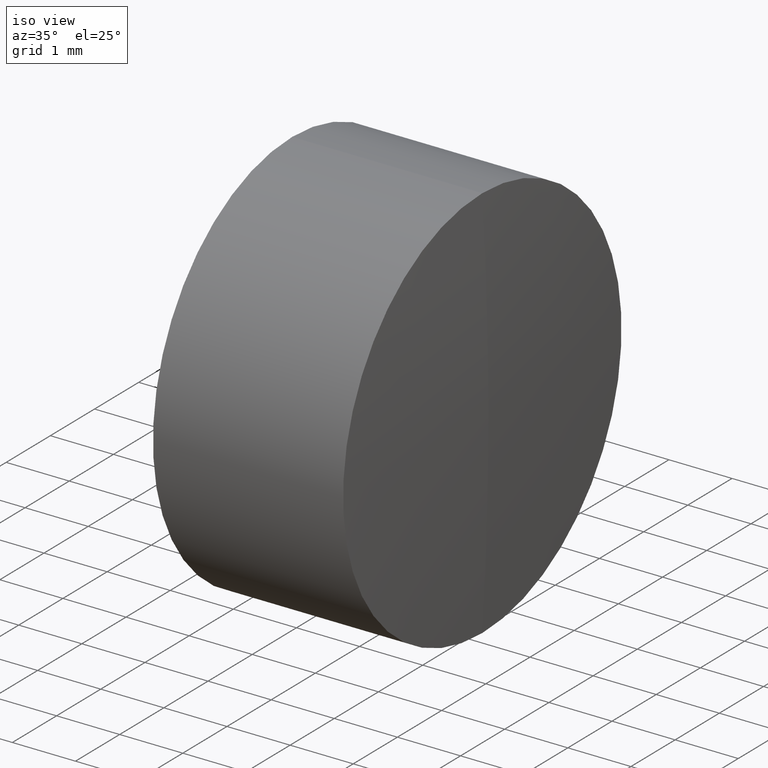
[diagram: clean part render]
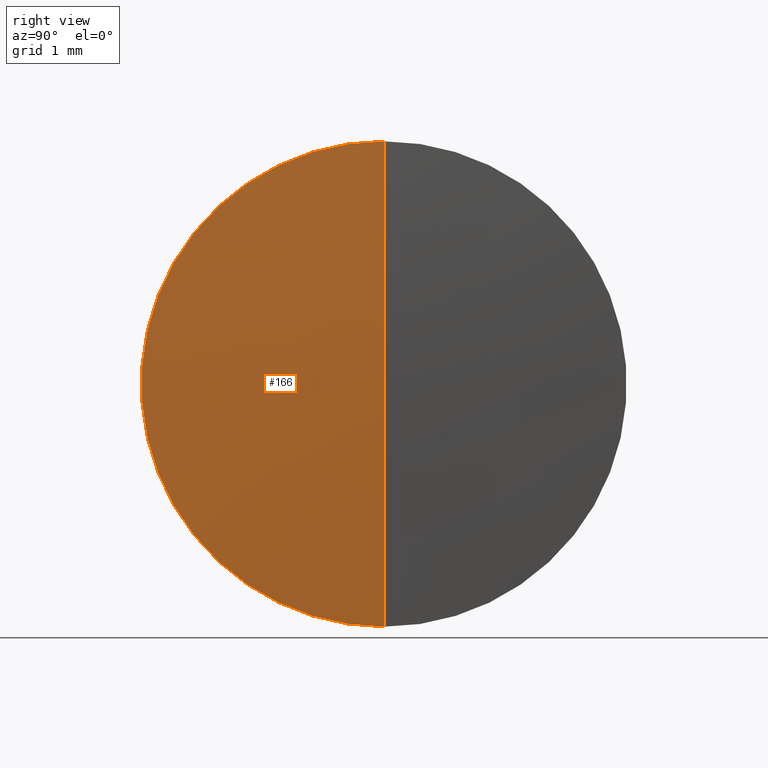
[diagram: tour spotlight — one face highlighted and labeled with its STEP entity id]
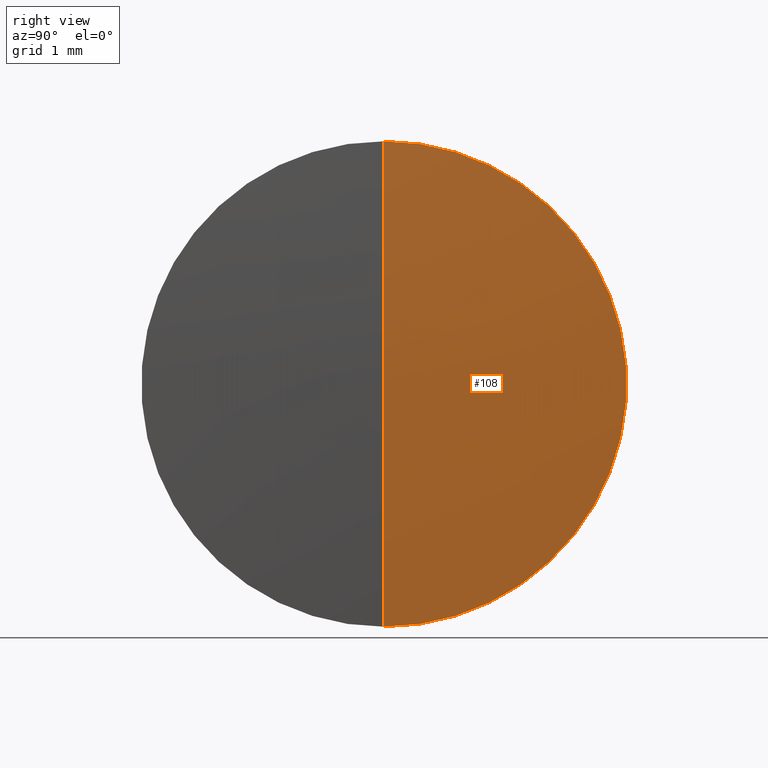
[diagram: tour spotlight — one face highlighted and labeled with its STEP entity id]
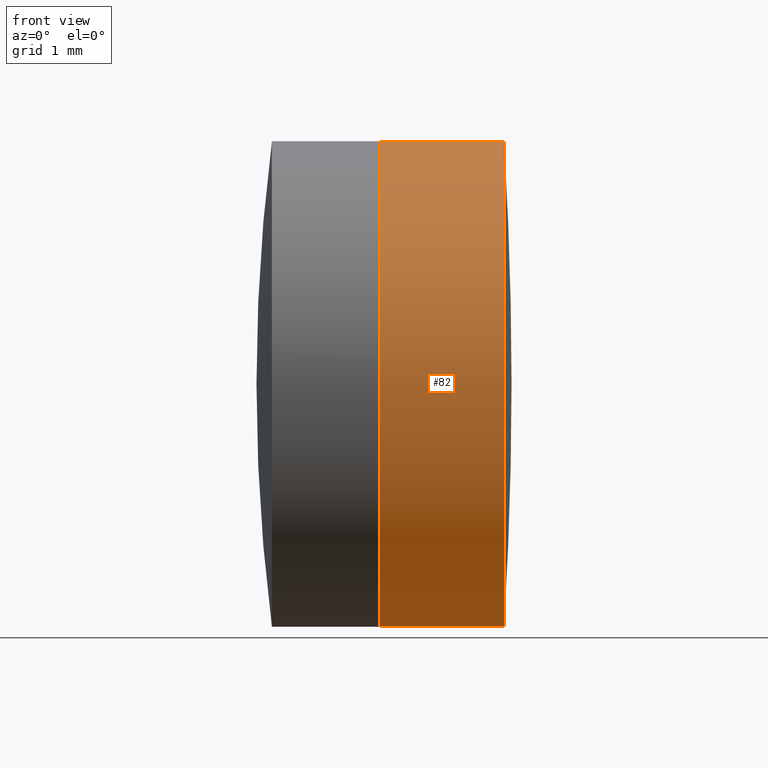
[diagram: tour spotlight — one face highlighted and labeled with its STEP entity id]
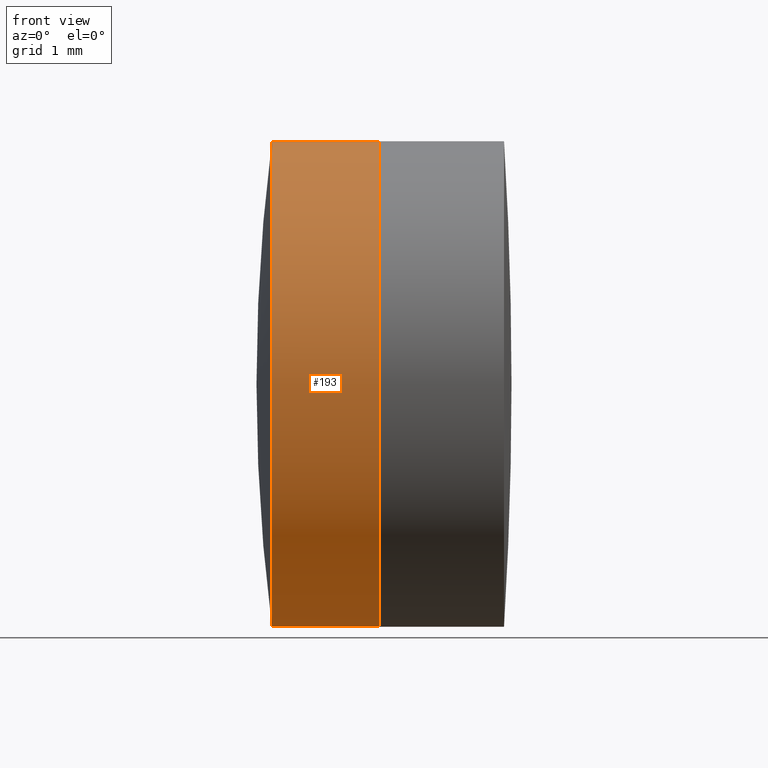
[diagram: tour spotlight — one face highlighted and labeled with its STEP entity id]
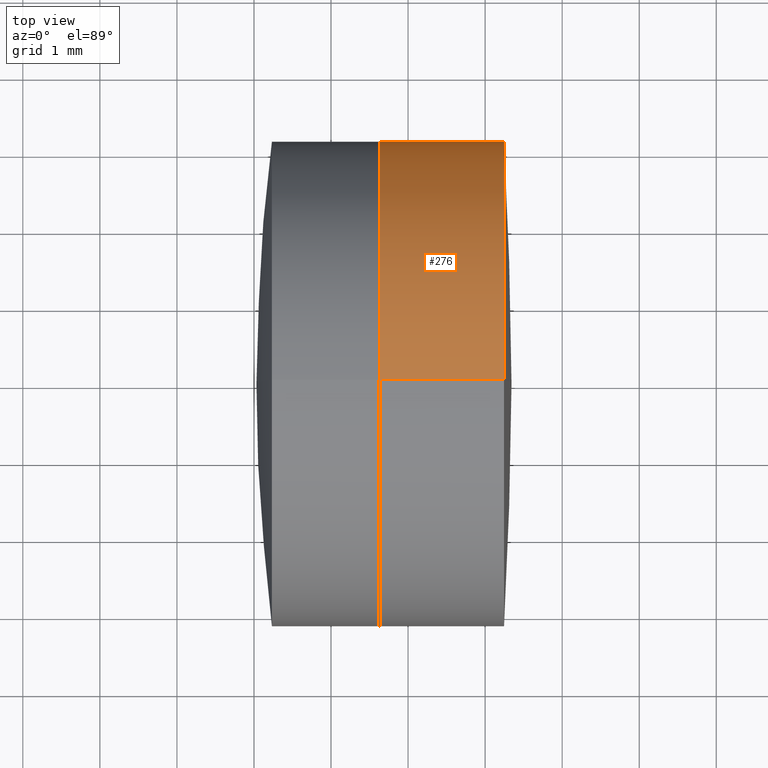
[diagram: tour spotlight — one face highlighted and labeled with its STEP entity id]
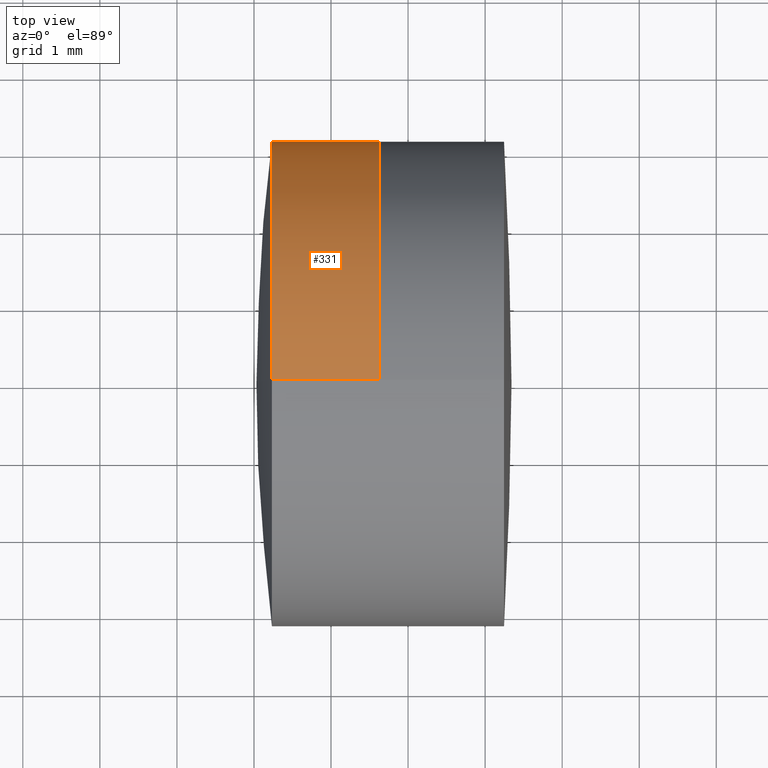
[diagram: tour spotlight — one face highlighted and labeled with its STEP entity id]
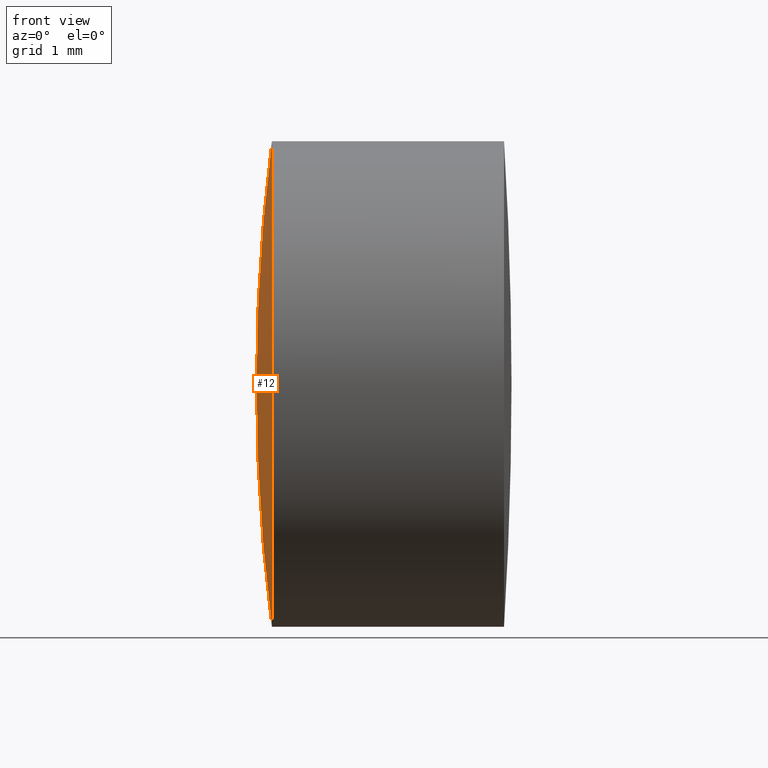
[diagram: tour spotlight — one face highlighted and labeled with its STEP entity id]
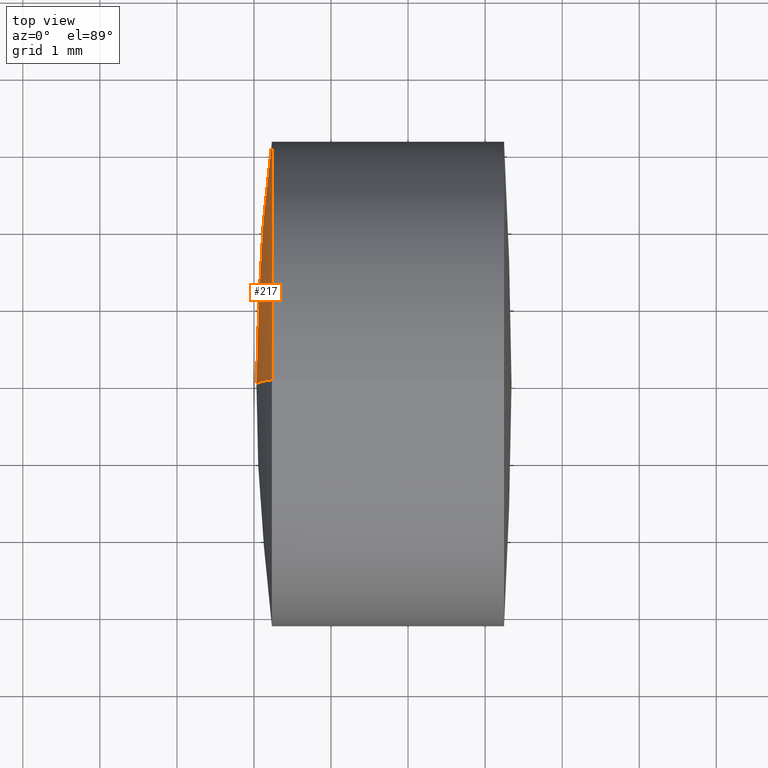
[diagram: tour spotlight — one face highlighted and labeled with its STEP entity id]
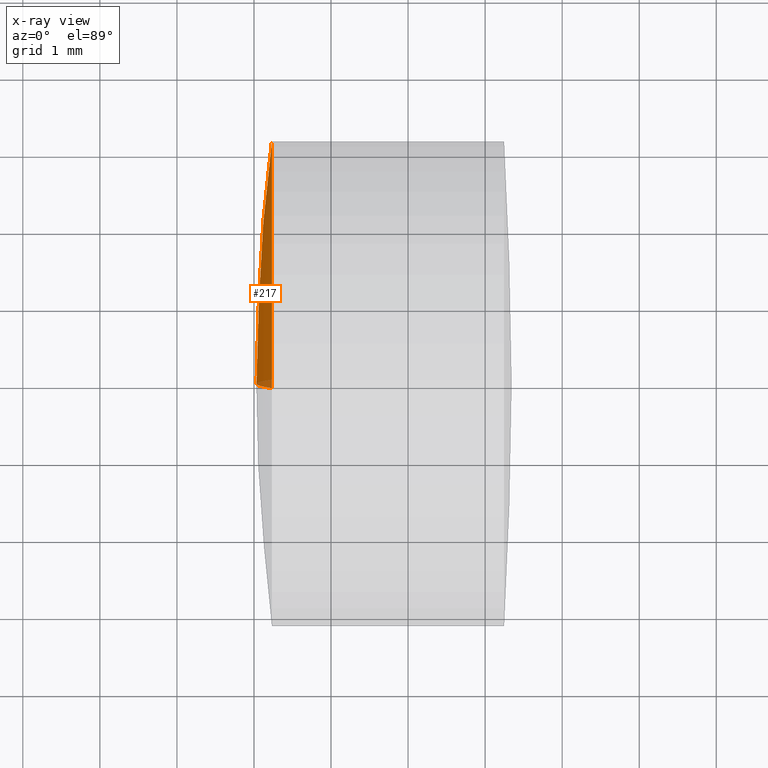
[diagram: x-ray of the same camera — body ghosted, this tour face saturated]
A machine part: a face-by-face anatomy tour. The part has 12 B-rep faces; the first image is the clean iso view, then the 8 largest visible faces are spotlighted one at a time (largest first), each with its STEP entity span.

Face 1 — right view, entity #166. In plain terms, the highlighted spherical surface has radius 51.066 mm.
Definition (entity closure, byte-faithful):
#8 = DIRECTION ( 'NONE',  ( 0.0000000000000000000, 0.0000000000000000000, 1.000000000000000000 ) ) ;
#16 = VERTEX_POINT ( 'NONE', #324 ) ;
#22 = ORIENTED_EDGE ( 'NONE', *, *, #316, .F. ) ;
#29 = CARTESIAN_POINT ( 'NONE',  ( 12.24520291692307500, 0.0000000000000000000, 0.0000000000000000000 ) ) ;
#53 = FACE_OUTER_BOUND ( 'NONE', #177, .T. ) ;
#68 = AXIS2_PLACEMENT_3D ( 'NONE', #29, #161, #8 ) ;
#69 = AXIS2_PLACEMENT_3D ( 'NONE', #268, #73, #234 ) ;
#73 = DIRECTION ( 'NONE',  ( 0.0000000000000000000, -1.000000000000000000, 0.0000000000000000000 ) ) ;
#75 = CARTESIAN_POINT ( 'NONE',  ( 12.24520291692307500, 3.857637417314163700E-016, -3.149999999999997700 ) ) ;
#83 = VERTEX_POINT ( 'NONE', #75 ) ;
#94 = EDGE_CURVE ( 'NONE', #290, #83, #121, .T. ) ;
#100 = CIRCLE ( 'NONE', #69, 51.06600000000000300 ) ;
#115 = EDGE_CURVE ( 'NONE', #290, #16, #100, .T. ) ;
#120 = AXIS2_PLACEMENT_3D ( 'NONE', #156, #270, #183 ) ;
#121 = CIRCLE ( 'NONE', #120, 51.06600000000000300 ) ;
#146 = AXIS2_PLACEMENT_3D ( 'NONE', #205, #320, #232 ) ;
#148 = SPHERICAL_SURFACE ( 'NONE', #146, 51.06600000000000300 ) ;
#156 = CARTESIAN_POINT ( 'NONE',  ( -38.72355080533307600, 0.0000000000000000000, 0.0000000000000000000 ) ) ;
#157 = ORIENTED_EDGE ( 'NONE', *, *, #115, .T. ) ;
#161 = DIRECTION ( 'NONE',  ( -1.000000000000000000, -0.0000000000000000000, -0.0000000000000000000 ) ) ;
#166 = ADVANCED_FACE ( 'NONE', ( #53 ), #148, .T. ) ;
#177 = EDGE_LOOP ( 'NONE', ( #269, #157, #22 ) ) ;
#183 = DIRECTION ( 'NONE',  ( 0.0000000000000000000, -1.224646799147353000E-016, 1.000000000000000000 ) ) ;
#205 = CARTESIAN_POINT ( 'NONE',  ( -38.72355080533307600, 0.0000000000000000000, 0.0000000000000000000 ) ) ;
#232 = DIRECTION ( 'NONE',  ( 0.0000000000000000000, 0.0000000000000000000, 1.000000000000000000 ) ) ;
#234 = DIRECTION ( 'NONE',  ( 0.0000000000000000000, 0.0000000000000000000, -1.000000000000000000 ) ) ;
#268 = CARTESIAN_POINT ( 'NONE',  ( -38.72355080533307600, 0.0000000000000000000, 0.0000000000000000000 ) ) ;
#269 = ORIENTED_EDGE ( 'NONE', *, *, #94, .F. ) ;
#270 = DIRECTION ( 'NONE',  ( -0.0000000000000000000, 1.000000000000000000, 1.224646799147353200E-016 ) ) ;
#290 = VERTEX_POINT ( 'NONE', #335 ) ;
#295 = CIRCLE ( 'NONE', #68, 3.149999999999997700 ) ;
#316 = EDGE_CURVE ( 'NONE', #83, #16, #295, .T. ) ;
#320 = DIRECTION ( 'NONE',  ( 0.0000000000000000000, 1.000000000000000000, 0.0000000000000000000 ) ) ;
#324 = CARTESIAN_POINT ( 'NONE',  ( 12.24520291692307500, 0.0000000000000000000, 3.149999999999997700 ) ) ;
#335 = CARTESIAN_POINT ( 'NONE',  ( 12.34244919466692600, 0.0000000000000000000, 3.126890672262936700E-015 ) ) ;

Face 2 — right view, entity #108. In plain terms, the highlighted spherical surface has radius 51.066 mm.
Definition (entity closure, byte-faithful):
#16 = VERTEX_POINT ( 'NONE', #324 ) ;
#36 = SPHERICAL_SURFACE ( 'NONE', #164, 51.06600000000000300 ) ;
#47 = DIRECTION ( 'NONE',  ( 0.0000000000000000000, 0.0000000000000000000, 1.000000000000000000 ) ) ;
#69 = AXIS2_PLACEMENT_3D ( 'NONE', #268, #73, #234 ) ;
#70 = DIRECTION ( 'NONE',  ( -1.000000000000000000, -0.0000000000000000000, -0.0000000000000000000 ) ) ;
#72 = ORIENTED_EDGE ( 'NONE', *, *, #115, .F. ) ;
#73 = DIRECTION ( 'NONE',  ( 0.0000000000000000000, -1.000000000000000000, 0.0000000000000000000 ) ) ;
#75 = CARTESIAN_POINT ( 'NONE',  ( 12.24520291692307500, 3.857637417314163700E-016, -3.149999999999997700 ) ) ;
#83 = VERTEX_POINT ( 'NONE', #75 ) ;
#91 = EDGE_LOOP ( 'NONE', ( #72, #317, #245 ) ) ;
#94 = EDGE_CURVE ( 'NONE', #290, #83, #121, .T. ) ;
#100 = CIRCLE ( 'NONE', #69, 51.06600000000000300 ) ;
#108 = ADVANCED_FACE ( 'NONE', ( #243 ), #36, .T. ) ;
#115 = EDGE_CURVE ( 'NONE', #290, #16, #100, .T. ) ;
#120 = AXIS2_PLACEMENT_3D ( 'NONE', #156, #270, #183 ) ;
#121 = CIRCLE ( 'NONE', #120, 51.06600000000000300 ) ;
#125 = DIRECTION ( 'NONE',  ( 0.0000000000000000000, 0.0000000000000000000, 1.000000000000000000 ) ) ;
#147 = EDGE_CURVE ( 'NONE', #16, #83, #175, .T. ) ;
#156 = CARTESIAN_POINT ( 'NONE',  ( -38.72355080533307600, 0.0000000000000000000, 0.0000000000000000000 ) ) ;
#160 = DIRECTION ( 'NONE',  ( 0.0000000000000000000, 1.000000000000000000, 0.0000000000000000000 ) ) ;
#164 = AXIS2_PLACEMENT_3D ( 'NONE', #209, #160, #125 ) ;
#175 = CIRCLE ( 'NONE', #275, 3.149999999999997700 ) ;
#183 = DIRECTION ( 'NONE',  ( 0.0000000000000000000, -1.224646799147353000E-016, 1.000000000000000000 ) ) ;
#209 = CARTESIAN_POINT ( 'NONE',  ( -38.72355080533307600, 0.0000000000000000000, 0.0000000000000000000 ) ) ;
#234 = DIRECTION ( 'NONE',  ( 0.0000000000000000000, 0.0000000000000000000, -1.000000000000000000 ) ) ;
#243 = FACE_OUTER_BOUND ( 'NONE', #91, .T. ) ;
#245 = ORIENTED_EDGE ( 'NONE', *, *, #147, .F. ) ;
#266 = CARTESIAN_POINT ( 'NONE',  ( 12.24520291692307500, 0.0000000000000000000, 0.0000000000000000000 ) ) ;
#268 = CARTESIAN_POINT ( 'NONE',  ( -38.72355080533307600, 0.0000000000000000000, 0.0000000000000000000 ) ) ;
#270 = DIRECTION ( 'NONE',  ( -0.0000000000000000000, 1.000000000000000000, 1.224646799147353200E-016 ) ) ;
#275 = AXIS2_PLACEMENT_3D ( 'NONE', #266, #70, #47 ) ;
#290 = VERTEX_POINT ( 'NONE', #335 ) ;
#317 = ORIENTED_EDGE ( 'NONE', *, *, #94, .T. ) ;
#324 = CARTESIAN_POINT ( 'NONE',  ( 12.24520291692307500, 0.0000000000000000000, 3.149999999999997700 ) ) ;
#335 = CARTESIAN_POINT ( 'NONE',  ( 12.34244919466692600, 0.0000000000000000000, 3.126890672262936700E-015 ) ) ;

Face 3 — front view, entity #82. In plain terms, the highlighted cylindrical surface (partial cylindrical patch) has radius 3.15 mm, axis along (-1, -0, -0).
Definition (entity closure, byte-faithful):
#8 = DIRECTION ( 'NONE',  ( 0.0000000000000000000, 0.0000000000000000000, 1.000000000000000000 ) ) ;
#16 = VERTEX_POINT ( 'NONE', #324 ) ;
#29 = CARTESIAN_POINT ( 'NONE',  ( 12.24520291692307500, 0.0000000000000000000, 0.0000000000000000000 ) ) ;
#30 = ORIENTED_EDGE ( 'NONE', *, *, #203, .T. ) ;
#31 = ORIENTED_EDGE ( 'NONE', *, *, #170, .F. ) ;
#48 = CARTESIAN_POINT ( 'NONE',  ( 10.62920690864783800, 0.0000000000000000000, 3.150000000000012300 ) ) ;
#67 = LINE ( 'NONE', #87, #220 ) ;
#68 = AXIS2_PLACEMENT_3D ( 'NONE', #29, #161, #8 ) ;
#74 = DIRECTION ( 'NONE',  ( -1.000000000000000000, -0.0000000000000000000, -0.0000000000000000000 ) ) ;
#75 = CARTESIAN_POINT ( 'NONE',  ( 12.24520291692307500, 3.857637417314163700E-016, -3.149999999999997700 ) ) ;
#80 = DIRECTION ( 'NONE',  ( 0.0000000000000000000, 0.0000000000000000000, 1.000000000000000000 ) ) ;
#82 = ADVANCED_FACE ( 'NONE', ( #204 ), #314, .T. ) ;
#83 = VERTEX_POINT ( 'NONE', #75 ) ;
#87 = CARTESIAN_POINT ( 'NONE',  ( -0.5519199926577972300, 0.0000000000000000000, 3.150000000000002600 ) ) ;
#92 = CIRCLE ( 'NONE', #299, 3.150000000000007000 ) ;
#105 = ORIENTED_EDGE ( 'NONE', *, *, #316, .T. ) ;
#106 = CARTESIAN_POINT ( 'NONE',  ( 10.62920690864784000, 0.0000000000000000000, 0.0000000000000000000 ) ) ;
#136 = VECTOR ( 'NONE', #74, 1000.000000000000000 ) ;
#141 = AXIS2_PLACEMENT_3D ( 'NONE', #297, #271, #185 ) ;
#142 = VERTEX_POINT ( 'NONE', #48 ) ;
#149 = VERTEX_POINT ( 'NONE', #294 ) ;
#161 = DIRECTION ( 'NONE',  ( -1.000000000000000000, -0.0000000000000000000, -0.0000000000000000000 ) ) ;
#170 = EDGE_CURVE ( 'NONE', #83, #149, #174, .T. ) ;
#174 = LINE ( 'NONE', #321, #136 ) ;
#185 = DIRECTION ( 'NONE',  ( 0.0000000000000000000, 0.0000000000000000000, 1.000000000000000000 ) ) ;
#202 = EDGE_LOOP ( 'NONE', ( #31, #105, #30, #292 ) ) ;
#203 = EDGE_CURVE ( 'NONE', #16, #142, #67, .T. ) ;
#204 = FACE_OUTER_BOUND ( 'NONE', #202, .T. ) ;
#220 = VECTOR ( 'NONE', #284, 1000.000000000000000 ) ;
#271 = DIRECTION ( 'NONE',  ( -1.000000000000000000, -0.0000000000000000000, -0.0000000000000000000 ) ) ;
#284 = DIRECTION ( 'NONE',  ( -1.000000000000000000, -0.0000000000000000000, -0.0000000000000000000 ) ) ;
#285 = EDGE_CURVE ( 'NONE', #149, #142, #92, .T. ) ;
#292 = ORIENTED_EDGE ( 'NONE', *, *, #285, .F. ) ;
#294 = CARTESIAN_POINT ( 'NONE',  ( 10.62920690864783800, 3.857637417314177500E-016, -3.150000000000011900 ) ) ;
#295 = CIRCLE ( 'NONE', #68, 3.149999999999997700 ) ;
#297 = CARTESIAN_POINT ( 'NONE',  ( -0.5519199926577972300, 0.0000000000000000000, 0.0000000000000000000 ) ) ;
#299 = AXIS2_PLACEMENT_3D ( 'NONE', #106, #304, #80 ) ;
#304 = DIRECTION ( 'NONE',  ( -1.000000000000000000, -0.0000000000000000000, -0.0000000000000000000 ) ) ;
#314 = CYLINDRICAL_SURFACE ( 'NONE', #141, 3.150000000000002600 ) ;
#316 = EDGE_CURVE ( 'NONE', #83, #16, #295, .T. ) ;
#321 = CARTESIAN_POINT ( 'NONE',  ( -0.5519199926577972300, 3.857637417314166100E-016, -3.150000000000002600 ) ) ;
#324 = CARTESIAN_POINT ( 'NONE',  ( 12.24520291692307500, 0.0000000000000000000, 3.149999999999997700 ) ) ;

Face 4 — front view, entity #193. In plain terms, the highlighted cylindrical surface (partial cylindrical patch) has radius 3.15 mm, axis along (-1, -0, -0).
Definition (entity closure, byte-faithful):
#6 = CARTESIAN_POINT ( 'NONE',  ( 9.232637584155448000, -3.857637417314168100E-016, 3.150000000000004400 ) ) ;
#10 = EDGE_CURVE ( 'NONE', #230, #227, #37, .T. ) ;
#11 = EDGE_CURVE ( 'NONE', #227, #38, #315, .T. ) ;
#20 = AXIS2_PLACEMENT_3D ( 'NONE', #55, #212, #28 ) ;
#23 = CARTESIAN_POINT ( 'NONE',  ( 10.62920690864784300, 0.0000000000000000000, 3.149999999999999900 ) ) ;
#25 = DIRECTION ( 'NONE',  ( 0.0000000000000000000, 0.0000000000000000000, 1.000000000000000000 ) ) ;
#28 = DIRECTION ( 'NONE',  ( 0.0000000000000000000, 0.0000000000000000000, 1.000000000000000000 ) ) ;
#37 = LINE ( 'NONE', #274, #257 ) ;
#38 = VERTEX_POINT ( 'NONE', #6 ) ;
#55 = CARTESIAN_POINT ( 'NONE',  ( 9.232637584155448000, 0.0000000000000000000, 0.0000000000000000000 ) ) ;
#79 = DIRECTION ( 'NONE',  ( -1.000000000000000000, -0.0000000000000000000, -0.0000000000000000000 ) ) ;
#86 = CYLINDRICAL_SURFACE ( 'NONE', #201, 3.149999999999999900 ) ;
#97 = CARTESIAN_POINT ( 'NONE',  ( 10.62920690864784300, 3.857637417314162700E-016, -3.149999999999999900 ) ) ;
#99 = CARTESIAN_POINT ( 'NONE',  ( -0.8160621761658039000, 0.0000000000000000000, 3.149999999999999900 ) ) ;
#101 = DIRECTION ( 'NONE',  ( -1.000000000000000000, -0.0000000000000000000, -0.0000000000000000000 ) ) ;
#126 = DIRECTION ( 'NONE',  ( -1.000000000000000000, -0.0000000000000000000, -0.0000000000000000000 ) ) ;
#130 = EDGE_CURVE ( 'NONE', #230, #145, #256, .T. ) ;
#133 = ORIENTED_EDGE ( 'NONE', *, *, #130, .T. ) ;
#143 = LINE ( 'NONE', #99, #158 ) ;
#145 = VERTEX_POINT ( 'NONE', #23 ) ;
#151 = DIRECTION ( 'NONE',  ( 0.0000000000000000000, 0.0000000000000000000, 1.000000000000000000 ) ) ;
#158 = VECTOR ( 'NONE', #79, 1000.000000000000000 ) ;
#171 = EDGE_LOOP ( 'NONE', ( #310, #133, #337, #229 ) ) ;
#180 = CARTESIAN_POINT ( 'NONE',  ( 10.62920690864784300, 0.0000000000000000000, 0.0000000000000000000 ) ) ;
#193 = ADVANCED_FACE ( 'NONE', ( #272 ), #86, .T. ) ;
#201 = AXIS2_PLACEMENT_3D ( 'NONE', #296, #126, #25 ) ;
#212 = DIRECTION ( 'NONE',  ( -1.000000000000000000, -0.0000000000000000000, -0.0000000000000000000 ) ) ;
#227 = VERTEX_POINT ( 'NONE', #255 ) ;
#229 = ORIENTED_EDGE ( 'NONE', *, *, #11, .F. ) ;
#230 = VERTEX_POINT ( 'NONE', #97 ) ;
#255 = CARTESIAN_POINT ( 'NONE',  ( 9.232637584155448000, 0.0000000000000000000, -3.150000000000004400 ) ) ;
#256 = CIRCLE ( 'NONE', #261, 3.149999999999999900 ) ;
#257 = VECTOR ( 'NONE', #101, 1000.000000000000000 ) ;
#261 = AXIS2_PLACEMENT_3D ( 'NONE', #180, #345, #151 ) ;
#272 = FACE_OUTER_BOUND ( 'NONE', #171, .T. ) ;
#274 = CARTESIAN_POINT ( 'NONE',  ( -0.8160621761658039000, 3.857637417314162700E-016, -3.149999999999999900 ) ) ;
#296 = CARTESIAN_POINT ( 'NONE',  ( -0.8160621761658039000, 0.0000000000000000000, 0.0000000000000000000 ) ) ;
#310 = ORIENTED_EDGE ( 'NONE', *, *, #10, .F. ) ;
#315 = CIRCLE ( 'NONE', #20, 3.149999999999999900 ) ;
#337 = ORIENTED_EDGE ( 'NONE', *, *, #340, .T. ) ;
#340 = EDGE_CURVE ( 'NONE', #145, #38, #143, .T. ) ;
#345 = DIRECTION ( 'NONE',  ( -1.000000000000000000, -0.0000000000000000000, -0.0000000000000000000 ) ) ;

Face 5 — top view, entity #276. In plain terms, the highlighted cylindrical surface (partial cylindrical patch) has radius 3.15 mm, axis along (-1, -0, -0).
Definition (entity closure, byte-faithful):
#2 = CIRCLE ( 'NONE', #291, 3.150000000000007000 ) ;
#15 = ORIENTED_EDGE ( 'NONE', *, *, #189, .F. ) ;
#16 = VERTEX_POINT ( 'NONE', #324 ) ;
#41 = CYLINDRICAL_SURFACE ( 'NONE', #313, 3.150000000000002600 ) ;
#47 = DIRECTION ( 'NONE',  ( 0.0000000000000000000, 0.0000000000000000000, 1.000000000000000000 ) ) ;
#48 = CARTESIAN_POINT ( 'NONE',  ( 10.62920690864783800, 0.0000000000000000000, 3.150000000000012300 ) ) ;
#50 = DIRECTION ( 'NONE',  ( -1.000000000000000000, -0.0000000000000000000, -0.0000000000000000000 ) ) ;
#67 = LINE ( 'NONE', #87, #220 ) ;
#70 = DIRECTION ( 'NONE',  ( -1.000000000000000000, -0.0000000000000000000, -0.0000000000000000000 ) ) ;
#74 = DIRECTION ( 'NONE',  ( -1.000000000000000000, -0.0000000000000000000, -0.0000000000000000000 ) ) ;
#75 = CARTESIAN_POINT ( 'NONE',  ( 12.24520291692307500, 3.857637417314163700E-016, -3.149999999999997700 ) ) ;
#83 = VERTEX_POINT ( 'NONE', #75 ) ;
#87 = CARTESIAN_POINT ( 'NONE',  ( -0.5519199926577972300, 0.0000000000000000000, 3.150000000000002600 ) ) ;
#116 = DIRECTION ( 'NONE',  ( 0.0000000000000000000, 0.0000000000000000000, 1.000000000000000000 ) ) ;
#136 = VECTOR ( 'NONE', #74, 1000.000000000000000 ) ;
#142 = VERTEX_POINT ( 'NONE', #48 ) ;
#147 = EDGE_CURVE ( 'NONE', #16, #83, #175, .T. ) ;
#149 = VERTEX_POINT ( 'NONE', #294 ) ;
#150 = ORIENTED_EDGE ( 'NONE', *, *, #147, .T. ) ;
#153 = DIRECTION ( 'NONE',  ( -1.000000000000000000, -0.0000000000000000000, -0.0000000000000000000 ) ) ;
#155 = CARTESIAN_POINT ( 'NONE',  ( 10.62920690864784000, 0.0000000000000000000, 0.0000000000000000000 ) ) ;
#165 = ORIENTED_EDGE ( 'NONE', *, *, #203, .F. ) ;
#170 = EDGE_CURVE ( 'NONE', #83, #149, #174, .T. ) ;
#174 = LINE ( 'NONE', #321, #136 ) ;
#175 = CIRCLE ( 'NONE', #275, 3.149999999999997700 ) ;
#189 = EDGE_CURVE ( 'NONE', #142, #149, #2, .T. ) ;
#195 = ORIENTED_EDGE ( 'NONE', *, *, #170, .T. ) ;
#203 = EDGE_CURVE ( 'NONE', #16, #142, #67, .T. ) ;
#220 = VECTOR ( 'NONE', #284, 1000.000000000000000 ) ;
#236 = DIRECTION ( 'NONE',  ( 0.0000000000000000000, 0.0000000000000000000, 1.000000000000000000 ) ) ;
#264 = EDGE_LOOP ( 'NONE', ( #150, #195, #15, #165 ) ) ;
#266 = CARTESIAN_POINT ( 'NONE',  ( 12.24520291692307500, 0.0000000000000000000, 0.0000000000000000000 ) ) ;
#275 = AXIS2_PLACEMENT_3D ( 'NONE', #266, #70, #47 ) ;
#276 = ADVANCED_FACE ( 'NONE', ( #319 ), #41, .T. ) ;
#284 = DIRECTION ( 'NONE',  ( -1.000000000000000000, -0.0000000000000000000, -0.0000000000000000000 ) ) ;
#291 = AXIS2_PLACEMENT_3D ( 'NONE', #155, #50, #116 ) ;
#293 = CARTESIAN_POINT ( 'NONE',  ( -0.5519199926577972300, 0.0000000000000000000, 0.0000000000000000000 ) ) ;
#294 = CARTESIAN_POINT ( 'NONE',  ( 10.62920690864783800, 3.857637417314177500E-016, -3.150000000000011900 ) ) ;
#313 = AXIS2_PLACEMENT_3D ( 'NONE', #293, #153, #236 ) ;
#319 = FACE_OUTER_BOUND ( 'NONE', #264, .T. ) ;
#321 = CARTESIAN_POINT ( 'NONE',  ( -0.5519199926577972300, 3.857637417314166100E-016, -3.150000000000002600 ) ) ;
#324 = CARTESIAN_POINT ( 'NONE',  ( 12.24520291692307500, 0.0000000000000000000, 3.149999999999997700 ) ) ;

Face 6 — top view, entity #331. In plain terms, the highlighted cylindrical surface (partial cylindrical patch) has radius 3.15 mm, axis along (-1, -0, -0).
Definition (entity closure, byte-faithful):
#4 = DIRECTION ( 'NONE',  ( 0.0000000000000000000, 0.0000000000000000000, 1.000000000000000000 ) ) ;
#6 = CARTESIAN_POINT ( 'NONE',  ( 9.232637584155448000, -3.857637417314168100E-016, 3.150000000000004400 ) ) ;
#10 = EDGE_CURVE ( 'NONE', #230, #227, #37, .T. ) ;
#13 = ORIENTED_EDGE ( 'NONE', *, *, #10, .T. ) ;
#19 = ORIENTED_EDGE ( 'NONE', *, *, #265, .T. ) ;
#23 = CARTESIAN_POINT ( 'NONE',  ( 10.62920690864784300, 0.0000000000000000000, 3.149999999999999900 ) ) ;
#37 = LINE ( 'NONE', #274, #257 ) ;
#38 = VERTEX_POINT ( 'NONE', #6 ) ;
#40 = CIRCLE ( 'NONE', #241, 3.149999999999999900 ) ;
#56 = AXIS2_PLACEMENT_3D ( 'NONE', #132, #329, #104 ) ;
#79 = DIRECTION ( 'NONE',  ( -1.000000000000000000, -0.0000000000000000000, -0.0000000000000000000 ) ) ;
#97 = CARTESIAN_POINT ( 'NONE',  ( 10.62920690864784300, 3.857637417314162700E-016, -3.149999999999999900 ) ) ;
#99 = CARTESIAN_POINT ( 'NONE',  ( -0.8160621761658039000, 0.0000000000000000000, 3.149999999999999900 ) ) ;
#101 = DIRECTION ( 'NONE',  ( -1.000000000000000000, -0.0000000000000000000, -0.0000000000000000000 ) ) ;
#104 = DIRECTION ( 'NONE',  ( 0.0000000000000000000, 0.0000000000000000000, 1.000000000000000000 ) ) ;
#114 = DIRECTION ( 'NONE',  ( -1.000000000000000000, -0.0000000000000000000, -0.0000000000000000000 ) ) ;
#132 = CARTESIAN_POINT ( 'NONE',  ( 9.232637584155448000, 0.0000000000000000000, 0.0000000000000000000 ) ) ;
#143 = LINE ( 'NONE', #99, #158 ) ;
#145 = VERTEX_POINT ( 'NONE', #23 ) ;
#158 = VECTOR ( 'NONE', #79, 1000.000000000000000 ) ;
#168 = AXIS2_PLACEMENT_3D ( 'NONE', #213, #244, #4 ) ;
#213 = CARTESIAN_POINT ( 'NONE',  ( -0.8160621761658039000, 0.0000000000000000000, 0.0000000000000000000 ) ) ;
#227 = VERTEX_POINT ( 'NONE', #255 ) ;
#228 = CIRCLE ( 'NONE', #56, 3.149999999999999900 ) ;
#230 = VERTEX_POINT ( 'NONE', #97 ) ;
#241 = AXIS2_PLACEMENT_3D ( 'NONE', #308, #114, #281 ) ;
#244 = DIRECTION ( 'NONE',  ( -1.000000000000000000, -0.0000000000000000000, -0.0000000000000000000 ) ) ;
#247 = FACE_OUTER_BOUND ( 'NONE', #342, .T. ) ;
#255 = CARTESIAN_POINT ( 'NONE',  ( 9.232637584155448000, 0.0000000000000000000, -3.150000000000004400 ) ) ;
#257 = VECTOR ( 'NONE', #101, 1000.000000000000000 ) ;
#259 = ORIENTED_EDGE ( 'NONE', *, *, #303, .F. ) ;
#265 = EDGE_CURVE ( 'NONE', #145, #230, #40, .T. ) ;
#274 = CARTESIAN_POINT ( 'NONE',  ( -0.8160621761658039000, 3.857637417314162700E-016, -3.149999999999999900 ) ) ;
#281 = DIRECTION ( 'NONE',  ( 0.0000000000000000000, 0.0000000000000000000, 1.000000000000000000 ) ) ;
#303 = EDGE_CURVE ( 'NONE', #38, #227, #228, .T. ) ;
#308 = CARTESIAN_POINT ( 'NONE',  ( 10.62920690864784300, 0.0000000000000000000, 0.0000000000000000000 ) ) ;
#309 = ORIENTED_EDGE ( 'NONE', *, *, #340, .F. ) ;
#329 = DIRECTION ( 'NONE',  ( -1.000000000000000000, -0.0000000000000000000, -0.0000000000000000000 ) ) ;
#331 = ADVANCED_FACE ( 'NONE', ( #247 ), #334, .T. ) ;
#334 = CYLINDRICAL_SURFACE ( 'NONE', #168, 3.149999999999999900 ) ;
#340 = EDGE_CURVE ( 'NONE', #145, #38, #143, .T. ) ;
#342 = EDGE_LOOP ( 'NONE', ( #19, #13, #259, #309 ) ) ;

Face 7 — front view, entity #12. In plain terms, the highlighted spherical surface has radius 24.883 mm.
Definition (entity closure, byte-faithful):
#6 = CARTESIAN_POINT ( 'NONE',  ( 9.232637584155448000, -3.857637417314168100E-016, 3.150000000000004400 ) ) ;
#11 = EDGE_CURVE ( 'NONE', #227, #38, #315, .T. ) ;
#12 = ADVANCED_FACE ( 'NONE', ( #102 ), #176, .T. ) ;
#20 = AXIS2_PLACEMENT_3D ( 'NONE', #55, #212, #28 ) ;
#21 = EDGE_CURVE ( 'NONE', #227, #289, #326, .T. ) ;
#28 = DIRECTION ( 'NONE',  ( 0.0000000000000000000, 0.0000000000000000000, 1.000000000000000000 ) ) ;
#38 = VERTEX_POINT ( 'NONE', #6 ) ;
#39 = AXIS2_PLACEMENT_3D ( 'NONE', #78, #240, #52 ) ;
#52 = DIRECTION ( 'NONE',  ( 0.0000000000000000000, 0.0000000000000000000, 1.000000000000000000 ) ) ;
#55 = CARTESIAN_POINT ( 'NONE',  ( 9.232637584155448000, 0.0000000000000000000, 0.0000000000000000000 ) ) ;
#57 = AXIS2_PLACEMENT_3D ( 'NONE', #191, #131, #188 ) ;
#76 = DIRECTION ( 'NONE',  ( 0.0000000000000000000, 1.224646799147353200E-016, -1.000000000000000000 ) ) ;
#78 = CARTESIAN_POINT ( 'NONE',  ( 33.91544919466692700, 0.0000000000000000000, 6.675445889808647100E-017 ) ) ;
#95 = ORIENTED_EDGE ( 'NONE', *, *, #21, .F. ) ;
#102 = FACE_OUTER_BOUND ( 'NONE', #346, .T. ) ;
#129 = DIRECTION ( 'NONE',  ( 0.0000000000000000000, -1.000000000000000000, -1.224646799147353200E-016 ) ) ;
#131 = DIRECTION ( 'NONE',  ( -0.0000000000000000000, -1.000000000000000000, -0.0000000000000000000 ) ) ;
#144 = AXIS2_PLACEMENT_3D ( 'NONE', #323, #129, #76 ) ;
#176 = SPHERICAL_SURFACE ( 'NONE', #57, 24.88300000000001000 ) ;
#188 = DIRECTION ( 'NONE',  ( 0.0000000000000000000, 0.0000000000000000000, -1.000000000000000000 ) ) ;
#191 = CARTESIAN_POINT ( 'NONE',  ( 33.91544919466692700, 0.0000000000000000000, 6.675445889808647100E-017 ) ) ;
#212 = DIRECTION ( 'NONE',  ( -1.000000000000000000, -0.0000000000000000000, -0.0000000000000000000 ) ) ;
#218 = ORIENTED_EDGE ( 'NONE', *, *, #11, .T. ) ;
#227 = VERTEX_POINT ( 'NONE', #255 ) ;
#240 = DIRECTION ( 'NONE',  ( 0.0000000000000000000, 1.000000000000000000, -0.0000000000000000000 ) ) ;
#242 = CIRCLE ( 'NONE', #144, 24.88300000000001000 ) ;
#248 = ORIENTED_EDGE ( 'NONE', *, *, #339, .T. ) ;
#254 = CARTESIAN_POINT ( 'NONE',  ( 9.032449194666918800, 0.0000000000000000000, -1.456889856261093500E-015 ) ) ;
#255 = CARTESIAN_POINT ( 'NONE',  ( 9.232637584155448000, 0.0000000000000000000, -3.150000000000004400 ) ) ;
#289 = VERTEX_POINT ( 'NONE', #254 ) ;
#315 = CIRCLE ( 'NONE', #20, 3.149999999999999900 ) ;
#323 = CARTESIAN_POINT ( 'NONE',  ( 33.91544919466692700, 0.0000000000000000000, 6.675445889808647100E-017 ) ) ;
#326 = CIRCLE ( 'NONE', #39, 24.88300000000001000 ) ;
#339 = EDGE_CURVE ( 'NONE', #38, #289, #242, .T. ) ;
#346 = EDGE_LOOP ( 'NONE', ( #218, #248, #95 ) ) ;

Face 8 — top view, entity #217. An x-ray twin of the same camera follows (body ghosted, this face saturated) — the face is partly hidden behind the body. In plain terms, the highlighted spherical surface has radius 24.883 mm.
Definition (entity closure, byte-faithful):
#6 = CARTESIAN_POINT ( 'NONE',  ( 9.232637584155448000, -3.857637417314168100E-016, 3.150000000000004400 ) ) ;
#21 = EDGE_CURVE ( 'NONE', #227, #289, #326, .T. ) ;
#38 = VERTEX_POINT ( 'NONE', #6 ) ;
#39 = AXIS2_PLACEMENT_3D ( 'NONE', #78, #240, #52 ) ;
#52 = DIRECTION ( 'NONE',  ( 0.0000000000000000000, 0.0000000000000000000, 1.000000000000000000 ) ) ;
#56 = AXIS2_PLACEMENT_3D ( 'NONE', #132, #329, #104 ) ;
#64 = DIRECTION ( 'NONE',  ( -0.0000000000000000000, -1.000000000000000000, -0.0000000000000000000 ) ) ;
#76 = DIRECTION ( 'NONE',  ( 0.0000000000000000000, 1.224646799147353200E-016, -1.000000000000000000 ) ) ;
#78 = CARTESIAN_POINT ( 'NONE',  ( 33.91544919466692700, 0.0000000000000000000, 6.675445889808647100E-017 ) ) ;
#88 = EDGE_LOOP ( 'NONE', ( #305, #199, #273 ) ) ;
#104 = DIRECTION ( 'NONE',  ( 0.0000000000000000000, 0.0000000000000000000, 1.000000000000000000 ) ) ;
#127 = SPHERICAL_SURFACE ( 'NONE', #169, 24.88300000000001000 ) ;
#129 = DIRECTION ( 'NONE',  ( 0.0000000000000000000, -1.000000000000000000, -1.224646799147353200E-016 ) ) ;
#132 = CARTESIAN_POINT ( 'NONE',  ( 9.232637584155448000, 0.0000000000000000000, 0.0000000000000000000 ) ) ;
#144 = AXIS2_PLACEMENT_3D ( 'NONE', #323, #129, #76 ) ;
#169 = AXIS2_PLACEMENT_3D ( 'NONE', #224, #64, #197 ) ;
#197 = DIRECTION ( 'NONE',  ( 0.0000000000000000000, 0.0000000000000000000, -1.000000000000000000 ) ) ;
#199 = ORIENTED_EDGE ( 'NONE', *, *, #303, .T. ) ;
#217 = ADVANCED_FACE ( 'NONE', ( #288 ), #127, .T. ) ;
#224 = CARTESIAN_POINT ( 'NONE',  ( 33.91544919466692700, 0.0000000000000000000, 6.675445889808647100E-017 ) ) ;
#227 = VERTEX_POINT ( 'NONE', #255 ) ;
#228 = CIRCLE ( 'NONE', #56, 3.149999999999999900 ) ;
#240 = DIRECTION ( 'NONE',  ( 0.0000000000000000000, 1.000000000000000000, -0.0000000000000000000 ) ) ;
#242 = CIRCLE ( 'NONE', #144, 24.88300000000001000 ) ;
#254 = CARTESIAN_POINT ( 'NONE',  ( 9.032449194666918800, 0.0000000000000000000, -1.456889856261093500E-015 ) ) ;
#255 = CARTESIAN_POINT ( 'NONE',  ( 9.232637584155448000, 0.0000000000000000000, -3.150000000000004400 ) ) ;
#273 = ORIENTED_EDGE ( 'NONE', *, *, #21, .T. ) ;
#288 = FACE_OUTER_BOUND ( 'NONE', #88, .T. ) ;
#289 = VERTEX_POINT ( 'NONE', #254 ) ;
#303 = EDGE_CURVE ( 'NONE', #38, #227, #228, .T. ) ;
#305 = ORIENTED_EDGE ( 'NONE', *, *, #339, .F. ) ;
#323 = CARTESIAN_POINT ( 'NONE',  ( 33.91544919466692700, 0.0000000000000000000, 6.675445889808647100E-017 ) ) ;
#326 = CIRCLE ( 'NONE', #39, 24.88300000000001000 ) ;
#329 = DIRECTION ( 'NONE',  ( -1.000000000000000000, -0.0000000000000000000, -0.0000000000000000000 ) ) ;
#339 = EDGE_CURVE ( 'NONE', #38, #289, #242, .T. ) ;